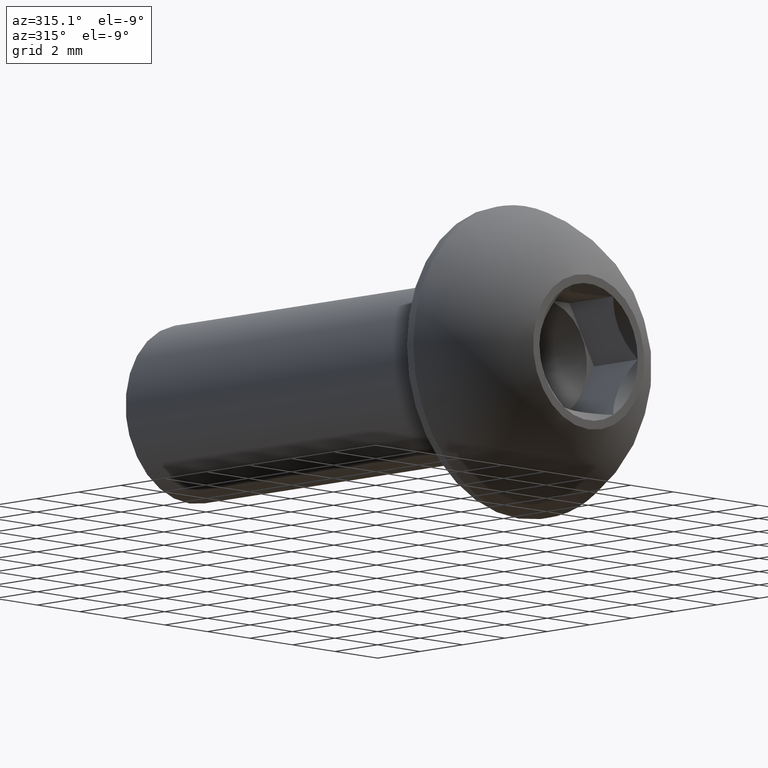
[diagram: clean part render]
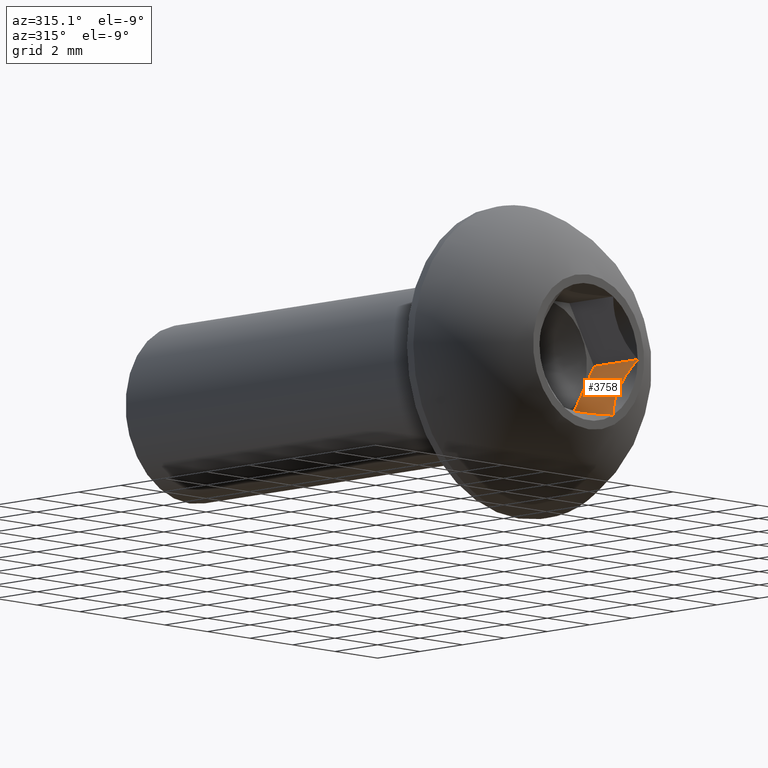
[diagram: same view with one face highlighted and labeled with its STEP entity id]
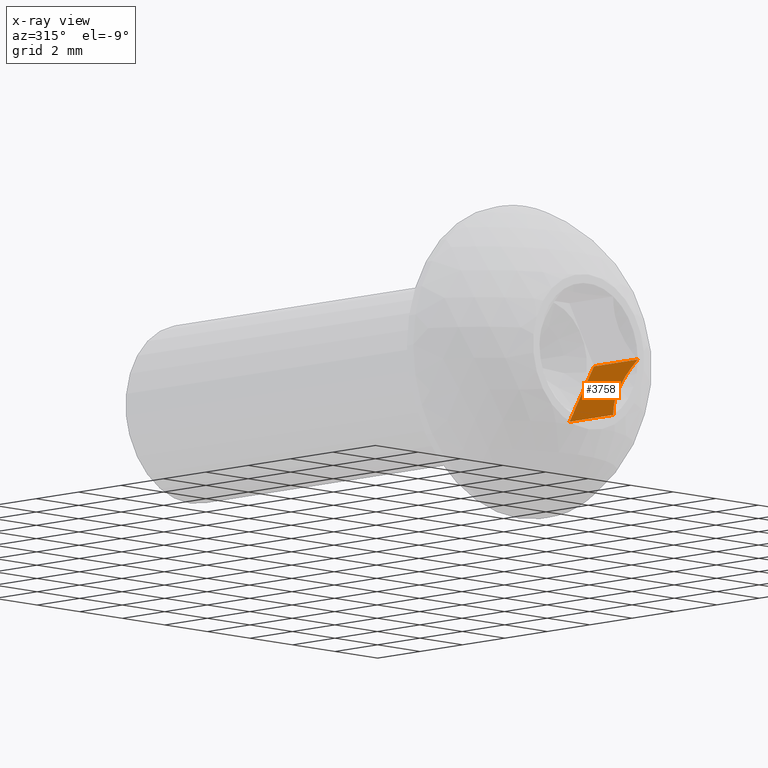
[diagram: x-ray of the same camera — body ghosted, the highlighted face saturated]
A machine part, auxiliary view. The second image highlights one B-rep face of the part: STEP entity #3758.
The next image is the same camera in x-ray: the body ghosted, the highlighted face saturated — about 1% of this face is hidden behind the body in this view.
In plain terms, the highlighted planar face has unit normal (0.866, 0, -0.5).
Its self-contained STEP definition (entity closure, byte-faithful):
#263 = CARTESIAN_POINT ( 'NONE',  ( 1.154700538379232100, 2.062499999999999600, -2.000000000000000900 ) ) ;
#654 = DIRECTION ( 'NONE',  ( 0.0000000000000000000, -1.000000000000000000, 0.0000000000000000000 ) ) ;
#786 = DIRECTION ( 'NONE',  ( -0.4999999999999977200, 0.0000000000000000000, -0.8660254037844398200 ) ) ;
#1159 = ORIENTED_EDGE ( 'NONE', *, *, #4373, .F. ) ;
#1336 = AXIS2_PLACEMENT_3D ( 'NONE', #10343, #10588, #786 ) ;
#1527 = CARTESIAN_POINT ( 'NONE',  ( 2.309401076758477200, 0.0000000000000000000, -4.329725882211680000E-016 ) ) ;
#2073 = CARTESIAN_POINT ( 'NONE',  ( 1.534293179749486300, 0.2792985613756313000, -1.342526258967445400 ) ) ;
#2572 = DIRECTION ( 'NONE',  ( 0.4999999999999977800, 0.0000000000000000000, 0.8660254037844398200 ) ) ;
#3231 = CARTESIAN_POINT ( 'NONE',  ( 1.338892124838637200, 0.1685650473658849000, -1.680970813925594300 ) ) ;
#3326 = VECTOR ( 'NONE', #11144, 1000.000000000000000 ) ;
#3606 = CARTESIAN_POINT ( 'NONE',  ( 1.154700538379232100, 2.062499999999999600, -2.000000000000000900 ) ) ;
#3758 = ADVANCED_FACE ( 'NONE', ( #10497 ), #12733, .F. ) ;
#4199 = ORIENTED_EDGE ( 'NONE', *, *, #13398, .F. ) ;
#4208 = LINE ( 'NONE', #3606, #10868 ) ;
#4373 = EDGE_CURVE ( 'NONE', #8503, #6145, #5201, .T. ) ;
#4913 = VERTEX_POINT ( 'NONE', #10605 ) ;
#5201 = B_SPLINE_CURVE_WITH_KNOTS ( 'NONE', 3,
 ( #8745, #12122, #13183, #5462, #7608, #9701, #8704, #13140, #2073, #3231, #10898, #12068 ),
 .UNSPECIFIED., .F., .F.,
 ( 4, 2, 2, 2, 2, 4 ),
 ( 2.544349856170600700E-007, 0.0005966331004600517900, 0.0008948224331972693800, 0.001193011765934487200, 0.001789390431408922300, 0.002385769096883357500 ),
 .UNSPECIFIED. ) ;
#5462 = CARTESIAN_POINT ( 'NONE',  ( 1.983596481850121700, 0.2491289938367703100, -0.5643101117206726900 ) ) ;
#5685 = CARTESIAN_POINT ( 'NONE',  ( 1.154700538379223500, 0.0000000000000000000, -2.000000000000016000 ) ) ;
#6145 = VERTEX_POINT ( 'NONE', #5685 ) ;
#6341 = ORIENTED_EDGE ( 'NONE', *, *, #9363, .T. ) ;
#7608 = CARTESIAN_POINT ( 'NONE',  ( 1.934985545853182200, 0.2709947582014008400, -0.6485067226708510800 ) ) ;
#8503 = VERTEX_POINT ( 'NONE', #1527 ) ;
#8704 = CARTESIAN_POINT ( 'NONE',  ( 1.784578465267425000, 0.3091822087746347600, -0.9090194280634901200 ) ) ;
#8745 = CARTESIAN_POINT ( 'NONE',  ( 2.309401076758477200, 0.0000000000000000000, -4.329725882211680000E-016 ) ) ;
#8818 = VECTOR ( 'NONE', #654, 1000.000000000000000 ) ;
#9124 = CARTESIAN_POINT ( 'NONE',  ( 1.154700538379232100, 2.062499999999999600, -2.000000000000000900 ) ) ;
#9363 = EDGE_CURVE ( 'NONE', #12759, #6145, #12810, .T. ) ;
#9558 = EDGE_CURVE ( 'NONE', #4913, #8503, #11037, .T. ) ;
#9701 = CARTESIAN_POINT ( 'NONE',  ( 1.835708118644007200, 0.3010809727709111700, -0.8204602706418642200 ) ) ;
#9895 = ORIENTED_EDGE ( 'NONE', *, *, #9558, .F. ) ;
#10343 = CARTESIAN_POINT ( 'NONE',  ( 1.154700538379232100, 2.062499999999999600, -2.000000000000000900 ) ) ;
#10497 = FACE_OUTER_BOUND ( 'NONE', #13757, .T. ) ;
#10588 = DIRECTION ( 'NONE',  ( 0.8660254037844399300, 0.0000000000000000000, -0.4999999999999977800 ) ) ;
#10605 = CARTESIAN_POINT ( 'NONE',  ( 2.309401076758477200, 2.062499999999999600, -4.329725882211680000E-016 ) ) ;
#10868 = VECTOR ( 'NONE', #2572, 1000.000000000000100 ) ;
#10898 = CARTESIAN_POINT ( 'NONE',  ( 1.245451299245582200, 0.09075076086680117200, -1.842815071353949100 ) ) ;
#11037 = LINE ( 'NONE', #11822, #8818 ) ;
#11144 = DIRECTION ( 'NONE',  ( 0.0000000000000000000, -1.000000000000000000, 0.0000000000000000000 ) ) ;
#11822 = CARTESIAN_POINT ( 'NONE',  ( 2.309401076758477200, 2.062499999999999600, -4.329725882211680000E-016 ) ) ;
#12068 = CARTESIAN_POINT ( 'NONE',  ( 1.154700538379223500, 0.0000000000000000000, -2.000000000000016000 ) ) ;
#12122 = CARTESIAN_POINT ( 'NONE',  ( 2.219182151635831400, 0.09021892512267321000, -0.1562637621166766400 ) ) ;
#12733 = PLANE ( 'NONE',  #1336 ) ;
#12759 = VERTEX_POINT ( 'NONE', #9124 ) ;
#12810 = LINE ( 'NONE', #263, #3326 ) ;
#13140 = CARTESIAN_POINT ( 'NONE',  ( 1.633374704908074700, 0.3098252479567656400, -1.170912023301353700 ) ) ;
#13183 = CARTESIAN_POINT ( 'NONE',  ( 2.126928016055928500, 0.1669275899206298700, -0.3160526121494167100 ) ) ;
#13398 = EDGE_CURVE ( 'NONE', #12759, #4913, #4208, .T. ) ;
#13757 = EDGE_LOOP ( 'NONE', ( #9895, #4199, #6341, #1159 ) ) ;